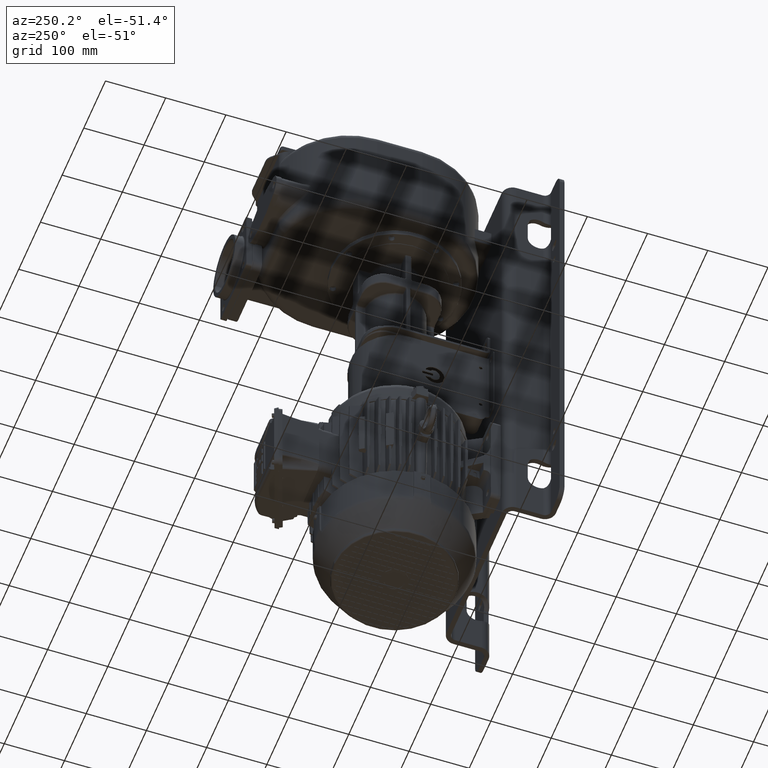
[diagram: clean part render]
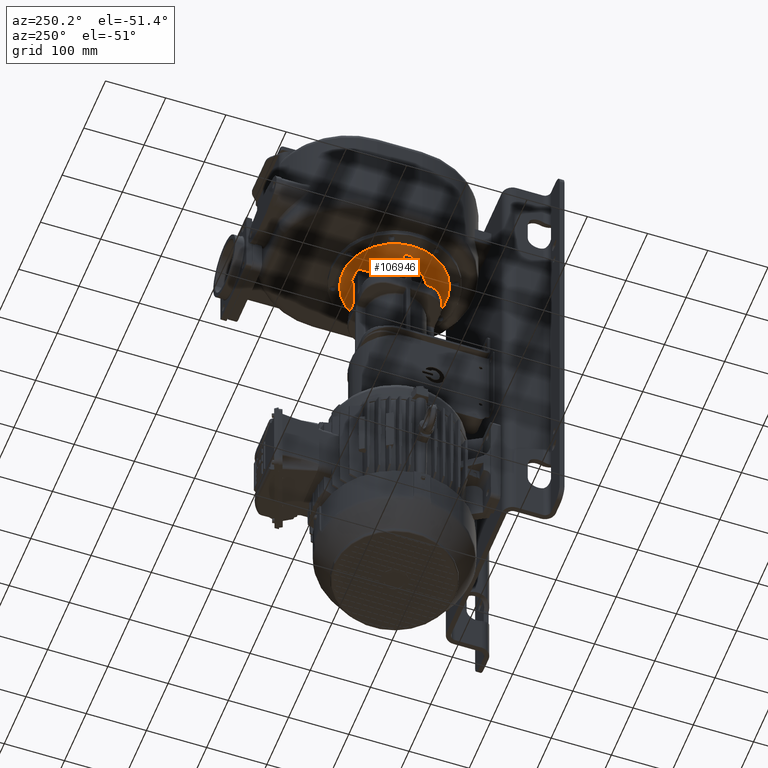
[diagram: same view with one face highlighted and labeled with its STEP entity id]
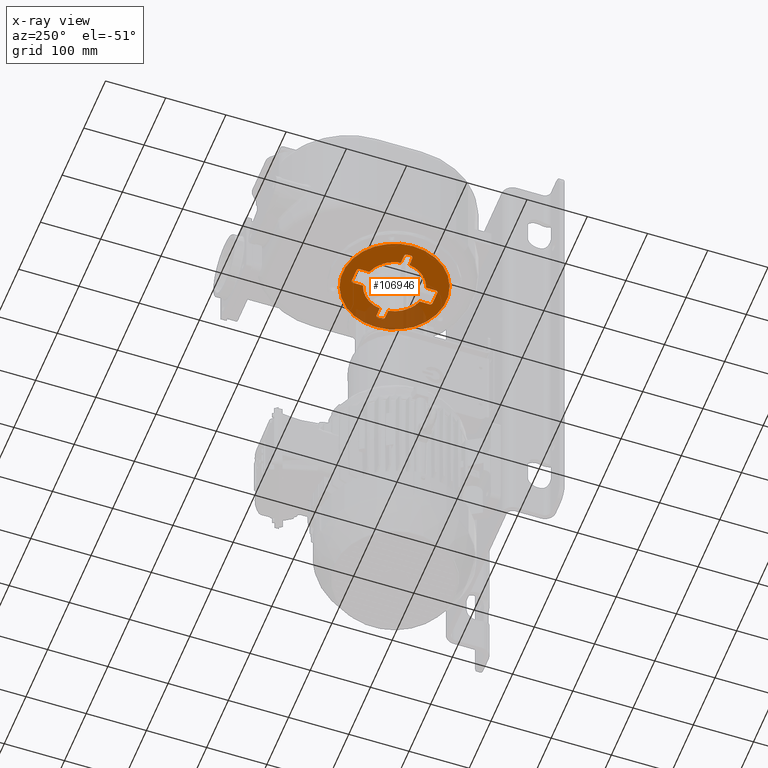
[diagram: x-ray of the same camera — body ghosted, the highlighted face saturated]
A machine part, auxiliary view. The second image highlights one B-rep face of the part: STEP entity #106946.
The next image is the same camera in x-ray: the body ghosted, the highlighted face saturated — about 25% of this face is hidden behind the body in this view.
In plain terms, the highlighted planar face has unit normal (0, 0, -1).
Its self-contained STEP definition (entity closure, byte-faithful):
#30479=CARTESIAN_POINT('',(0.E0,1.32E2,-7.95E1));
#30480=DIRECTION('',(0.E0,0.E0,-1.E0));
#30481=DIRECTION('',(1.E0,0.E0,0.E0));
#30482=AXIS2_PLACEMENT_3D('',#30479,#30480,#30481);
#30484=CARTESIAN_POINT('',(0.E0,1.32E2,-7.95E1));
#30485=DIRECTION('',(0.E0,0.E0,-1.E0));
#30486=DIRECTION('',(-1.E0,0.E0,0.E0));
#30487=AXIS2_PLACEMENT_3D('',#30484,#30485,#30486);
#30489=DIRECTION('',(1.E0,-1.921848923373E-13,0.E0));
#30490=VECTOR('',#30489,2.100000000017E1);
#30491=CARTESIAN_POINT('',(-1.050000000047E1,1.989999999999E2,-7.95E1));
#30492=LINE('',#30491,#30490);
#30493=CARTESIAN_POINT('',(1.05E1,1.95E2,-7.95E1));
#30494=DIRECTION('',(0.E0,0.E0,-1.E0));
#30495=DIRECTION('',(0.E0,1.E0,0.E0));
#30496=AXIS2_PLACEMENT_3D('',#30493,#30494,#30495);
#30498=DIRECTION('',(3.355715102301E-12,-1.E0,-1.007861046300E-7));
#30499=VECTOR('',#30498,1.597692309756E1);
#30500=CARTESIAN_POINT('',(1.449999999995E1,1.950000000005E2,-7.95E1));
#30501=LINE('',#30500,#30499);
#30502=CARTESIAN_POINT('',(0.E0,1.32E2,-7.95E1));
#30503=DIRECTION('',(0.E0,0.E0,-1.E0));
#30504=DIRECTION('',(2.946679918403E-1,9.555996936923E-1,0.E0));
#30505=AXIS2_PLACEMENT_3D('',#30502,#30503,#30504);
#30507=DIRECTION('',(1.E0,-4.036805131149E-12,1.510316341807E-7));
#30508=VECTOR('',#30507,1.429250812692E1);
#30509=CARTESIAN_POINT('',(4.870749187279E1,1.39E2,-7.950000215862E1));
#30510=LINE('',#30509,#30508);
#30511=CARTESIAN_POINT('',(6.3E1,1.35E2,-7.95E1));
#30512=DIRECTION('',(0.E0,0.E0,-1.E0));
#30513=DIRECTION('',(0.E0,1.E0,0.E0));
#30514=AXIS2_PLACEMENT_3D('',#30511,#30512,#30513);
#30516=DIRECTION('',(-6.726471231670E-13,-1.E0,0.E0));
#30517=VECTOR('',#30516,6.000000000172E0);
#30518=CARTESIAN_POINT('',(6.699999999995E1,1.350000000005E2,-7.95E1));
#30519=LINE('',#30518,#30517);
#30520=CARTESIAN_POINT('',(6.3E1,1.29E2,-7.95E1));
#30521=DIRECTION('',(0.E0,0.E0,-1.E0));
#30522=DIRECTION('',(1.E0,0.E0,0.E0));
#30523=AXIS2_PLACEMENT_3D('',#30520,#30521,#30522);
#30525=DIRECTION('',(-1.E0,-3.751444768231E-12,-1.510285329917E-7));
#30526=VECTOR('',#30525,1.429250812767E1);
#30527=CARTESIAN_POINT('',(6.300000000047E1,1.250000000001E2,-7.95E1));
#30528=LINE('',#30527,#30526);
#30529=CARTESIAN_POINT('',(0.E0,1.32E2,-7.95E1));
#30530=DIRECTION('',(0.E0,0.E0,-1.E0));
#30531=DIRECTION('',(9.898302571943E-1,-1.422535129363E-1,0.E0));
#30532=AXIS2_PLACEMENT_3D('',#30529,#30530,#30531);
#30534=DIRECTION('',(-3.608099745044E-12,-1.E0,1.008032908058E-7));
#30535=VECTOR('',#30534,1.597692309682E1);
#30536=CARTESIAN_POINT('',(1.45E1,8.497692309712E1,-7.950000161053E1));
#30537=LINE('',#30536,#30535);
#30538=CARTESIAN_POINT('',(1.05E1,6.9E1,-7.95E1));
#30539=DIRECTION('',(0.E0,0.E0,-1.E0));
#30540=DIRECTION('',(1.E0,0.E0,0.E0));
#30541=AXIS2_PLACEMENT_3D('',#30538,#30539,#30540);
#30543=DIRECTION('',(-1.E0,1.915081849700E-13,0.E0));
#30544=VECTOR('',#30543,2.100000000017E1);
#30545=CARTESIAN_POINT('',(1.050000000047E1,6.500000000005E1,-7.95E1));
#30546=LINE('',#30545,#30544);
#30547=CARTESIAN_POINT('',(-1.05E1,6.9E1,-7.95E1));
#30548=DIRECTION('',(0.E0,0.E0,-1.E0));
#30549=DIRECTION('',(0.E0,-1.E0,0.E0));
#30550=AXIS2_PLACEMENT_3D('',#30547,#30548,#30549);
#30552=DIRECTION('',(-3.355826284962E-12,1.E0,-1.007861055195E-7));
#30553=VECTOR('',#30552,1.597692309756E1);
#30554=CARTESIAN_POINT('',(-1.449999999995E1,6.899999999953E1,-7.95E1));
#30555=LINE('',#30554,#30553);
#30556=CARTESIAN_POINT('',(0.E0,1.32E2,-7.95E1));
#30557=DIRECTION('',(0.E0,0.E0,-1.E0));
#30558=DIRECTION('',(-2.946679918403E-1,-9.555996936923E-1,0.E0));
#30559=AXIS2_PLACEMENT_3D('',#30556,#30557,#30558);
#30561=DIRECTION('',(-1.E0,4.032827983236E-12,1.510316351750E-7));
#30562=VECTOR('',#30561,1.429250812692E1);
#30563=CARTESIAN_POINT('',(-4.870749187279E1,1.25E2,-7.950000215862E1));
#30564=LINE('',#30563,#30562);
#30565=CARTESIAN_POINT('',(-6.3E1,1.29E2,-7.95E1));
#30566=DIRECTION('',(0.E0,0.E0,-1.E0));
#30567=DIRECTION('',(0.E0,-1.E0,0.E0));
#30568=AXIS2_PLACEMENT_3D('',#30565,#30566,#30567);
#30570=DIRECTION('',(6.702786473811E-13,1.E0,0.E0));
#30571=VECTOR('',#30570,6.000000000172E0);
#30572=CARTESIAN_POINT('',(-6.699999999995E1,1.289999999995E2,-7.95E1));
#30573=LINE('',#30572,#30571);
#30574=CARTESIAN_POINT('',(-6.3E1,1.35E2,-7.95E1));
#30575=DIRECTION('',(0.E0,0.E0,-1.E0));
#30576=DIRECTION('',(-1.E0,0.E0,0.E0));
#30577=AXIS2_PLACEMENT_3D('',#30574,#30575,#30576);
#30579=DIRECTION('',(1.E0,3.754427629166E-12,-1.510285329917E-7));
#30580=VECTOR('',#30579,1.429250812767E1);
#30581=CARTESIAN_POINT('',(-6.300000000047E1,1.389999999999E2,-7.95E1));
#30582=LINE('',#30581,#30580);
#30583=CARTESIAN_POINT('',(0.E0,1.32E2,-7.95E1));
#30584=DIRECTION('',(0.E0,0.E0,-1.E0));
#30585=DIRECTION('',(-9.898302571943E-1,1.422535129363E-1,0.E0));
#30586=AXIS2_PLACEMENT_3D('',#30583,#30584,#30585);
#30588=DIRECTION('',(3.608544475691E-12,1.E0,1.008032908058E-7));
#30589=VECTOR('',#30588,1.597692309682E1);
#30590=CARTESIAN_POINT('',(-1.45E1,1.790230769029E2,-7.950000161053E1));
#30591=LINE('',#30590,#30589);
#30592=CARTESIAN_POINT('',(-1.05E1,1.95E2,-7.95E1));
#30593=DIRECTION('',(0.E0,0.E0,-1.E0));
#30594=DIRECTION('',(-1.E0,0.E0,0.E0));
#30595=AXIS2_PLACEMENT_3D('',#30592,#30593,#30594);
#59170=CARTESIAN_POINT('',(-1.050000000047E1,1.989999999999E2,-7.95E1));
#59171=CARTESIAN_POINT('',(1.049999999970E1,1.989999999999E2,-7.95E1));
#59172=VERTEX_POINT('',#59170);
#59173=VERTEX_POINT('',#59171);
#59262=CARTESIAN_POINT('',(1.050000000047E1,6.500000000005E1,-7.95E1));
#59263=CARTESIAN_POINT('',(-1.049999999970E1,6.500000000006E1,-7.95E1));
#59264=VERTEX_POINT('',#59262);
#59265=VERTEX_POINT('',#59263);
#59360=CARTESIAN_POINT('',(1.45E1,1.95E2,-7.95E1));
#59361=VERTEX_POINT('',#59360);
#59362=CARTESIAN_POINT('',(1.45E1,6.9E1,-7.95E1));
#59363=VERTEX_POINT('',#59362);
#59364=CARTESIAN_POINT('',(-1.45E1,6.9E1,-7.95E1));
#59365=VERTEX_POINT('',#59364);
#59366=CARTESIAN_POINT('',(-1.45E1,1.95E2,-7.95E1));
#59367=VERTEX_POINT('',#59366);
#59368=CARTESIAN_POINT('',(6.3E1,1.39E2,-7.95E1));
#59369=VERTEX_POINT('',#59368);
#59370=CARTESIAN_POINT('',(6.7E1,1.35E2,-7.95E1));
#59371=VERTEX_POINT('',#59370);
#59372=CARTESIAN_POINT('',(6.7E1,1.29E2,-7.95E1));
#59373=VERTEX_POINT('',#59372);
#59374=CARTESIAN_POINT('',(6.3E1,1.25E2,-7.95E1));
#59375=VERTEX_POINT('',#59374);
#59376=CARTESIAN_POINT('',(-6.3E1,1.25E2,-7.95E1));
#59377=VERTEX_POINT('',#59376);
#59378=CARTESIAN_POINT('',(-6.7E1,1.29E2,-7.95E1));
#59379=VERTEX_POINT('',#59378);
#59380=CARTESIAN_POINT('',(-6.7E1,1.35E2,-7.95E1));
#59381=VERTEX_POINT('',#59380);
#59382=CARTESIAN_POINT('',(-6.3E1,1.39E2,-7.95E1));
#59383=VERTEX_POINT('',#59382);
#59384=CARTESIAN_POINT('',(-1.45E1,1.790230769029E2,-7.950000161053E1));
#59385=VERTEX_POINT('',#59384);
#59392=CARTESIAN_POINT('',(-4.870749187280E1,1.39E2,-7.950000215858E1));
#59393=VERTEX_POINT('',#59392);
#59396=CARTESIAN_POINT('',(-4.870749187279E1,1.25E2,-7.950000215862E1));
#59397=VERTEX_POINT('',#59396);
#59404=CARTESIAN_POINT('',(-1.45E1,8.497692309709E1,-7.950000161025E1));
#59405=VERTEX_POINT('',#59404);
#59408=CARTESIAN_POINT('',(1.45E1,8.497692309712E1,-7.950000161053E1));
#59409=VERTEX_POINT('',#59408);
#59416=CARTESIAN_POINT('',(4.870749187280E1,1.25E2,-7.950000215858E1));
#59417=VERTEX_POINT('',#59416);
#59420=CARTESIAN_POINT('',(4.870749187279E1,1.39E2,-7.950000215862E1));
#59421=VERTEX_POINT('',#59420);
#59428=CARTESIAN_POINT('',(1.45E1,1.790230769029E2,-7.950000161025E1));
#59429=VERTEX_POINT('',#59428);
#59436=CARTESIAN_POINT('',(8.6E1,1.32E2,-7.95E1));
#59437=CARTESIAN_POINT('',(-8.6E1,1.32E2,-7.95E1));
#59438=VERTEX_POINT('',#59436);
#59439=VERTEX_POINT('',#59437);
#106887=CARTESIAN_POINT('',(0.E0,1.32E2,-7.95E1));
#106888=DIRECTION('',(0.E0,0.E0,-1.E0));
#106889=DIRECTION('',(0.E0,1.E0,0.E0));
#106890=AXIS2_PLACEMENT_3D('',#106887,#106888,#106889);
#106891=PLANE('',#106890);
#106893=ORIENTED_EDGE('',*,*,#106892,.F.);
#106895=ORIENTED_EDGE('',*,*,#106894,.F.);
#106896=EDGE_LOOP('',(#106893,#106895));
#106897=FACE_OUTER_BOUND('',#106896,.F.);
#106899=ORIENTED_EDGE('',*,*,#106898,.T.);
#106901=ORIENTED_EDGE('',*,*,#106900,.T.);
#106903=ORIENTED_EDGE('',*,*,#106902,.T.);
#106905=ORIENTED_EDGE('',*,*,#106904,.T.);
#106907=ORIENTED_EDGE('',*,*,#106906,.T.);
#106909=ORIENTED_EDGE('',*,*,#106908,.T.);
#106911=ORIENTED_EDGE('',*,*,#106910,.T.);
#106913=ORIENTED_EDGE('',*,*,#106912,.T.);
#106915=ORIENTED_EDGE('',*,*,#106914,.T.);
#106917=ORIENTED_EDGE('',*,*,#106916,.T.);
#106919=ORIENTED_EDGE('',*,*,#106918,.T.);
#106921=ORIENTED_EDGE('',*,*,#106920,.T.);
#106923=ORIENTED_EDGE('',*,*,#106922,.T.);
#106925=ORIENTED_EDGE('',*,*,#106924,.T.);
#106927=ORIENTED_EDGE('',*,*,#106926,.T.);
#106929=ORIENTED_EDGE('',*,*,#106928,.T.);
#106930=ORIENTED_EDGE('',*,*,#106879,.T.);
#106931=ORIENTED_EDGE('',*,*,#106868,.T.);
#106933=ORIENTED_EDGE('',*,*,#106932,.T.);
#106935=ORIENTED_EDGE('',*,*,#106934,.T.);
#106937=ORIENTED_EDGE('',*,*,#106936,.T.);
#106939=ORIENTED_EDGE('',*,*,#106938,.T.);
#106941=ORIENTED_EDGE('',*,*,#106940,.T.);
#106943=ORIENTED_EDGE('',*,*,#106942,.T.);
#106944=EDGE_LOOP('',(#106899,#106901,#106903,#106905,#106907,#106909,#106911,
#106913,#106915,#106917,#106919,#106921,#106923,#106925,#106927,#106929,#106930,
#106931,#106933,#106935,#106937,#106939,#106941,#106943));
#106945=FACE_BOUND('',#106944,.F.);
#106946=ADVANCED_FACE('',(#106897,#106945),#106891,.T.);
#30483=CIRCLE('',#30482,8.6E1);
#30488=CIRCLE('',#30487,8.6E1);
#30497=CIRCLE('',#30496,4.E0);
#30506=CIRCLE('',#30505,4.920792385575E1);
#30515=CIRCLE('',#30514,4.E0);
#30524=CIRCLE('',#30523,4.E0);
#30533=CIRCLE('',#30532,4.920792385575E1);
#30542=CIRCLE('',#30541,4.E0);
#30551=CIRCLE('',#30550,4.E0);
#30560=CIRCLE('',#30559,4.920792385575E1);
#30569=CIRCLE('',#30568,4.E0);
#30578=CIRCLE('',#30577,4.E0);
#30587=CIRCLE('',#30586,4.920792385575E1);
#30596=CIRCLE('',#30595,4.E0);
#106868=EDGE_CURVE('',#59377,#59379,#30569,.T.);
#106879=EDGE_CURVE('',#59397,#59377,#30564,.T.);
#106892=EDGE_CURVE('',#59438,#59439,#30483,.T.);
#106894=EDGE_CURVE('',#59439,#59438,#30488,.T.);
#106898=EDGE_CURVE('',#59172,#59173,#30492,.T.);
#106900=EDGE_CURVE('',#59173,#59361,#30497,.T.);
#106902=EDGE_CURVE('',#59361,#59429,#30501,.T.);
#106904=EDGE_CURVE('',#59429,#59421,#30506,.T.);
#106906=EDGE_CURVE('',#59421,#59369,#30510,.T.);
#106908=EDGE_CURVE('',#59369,#59371,#30515,.T.);
#106910=EDGE_CURVE('',#59371,#59373,#30519,.T.);
#106912=EDGE_CURVE('',#59373,#59375,#30524,.T.);
#106914=EDGE_CURVE('',#59375,#59417,#30528,.T.);
#106916=EDGE_CURVE('',#59417,#59409,#30533,.T.);
#106918=EDGE_CURVE('',#59409,#59363,#30537,.T.);
#106920=EDGE_CURVE('',#59363,#59264,#30542,.T.);
#106922=EDGE_CURVE('',#59264,#59265,#30546,.T.);
#106924=EDGE_CURVE('',#59265,#59365,#30551,.T.);
#106926=EDGE_CURVE('',#59365,#59405,#30555,.T.);
#106928=EDGE_CURVE('',#59405,#59397,#30560,.T.);
#106932=EDGE_CURVE('',#59379,#59381,#30573,.T.);
#106934=EDGE_CURVE('',#59381,#59383,#30578,.T.);
#106936=EDGE_CURVE('',#59383,#59393,#30582,.T.);
#106938=EDGE_CURVE('',#59393,#59385,#30587,.T.);
#106940=EDGE_CURVE('',#59385,#59367,#30591,.T.);
#106942=EDGE_CURVE('',#59367,#59172,#30596,.T.);